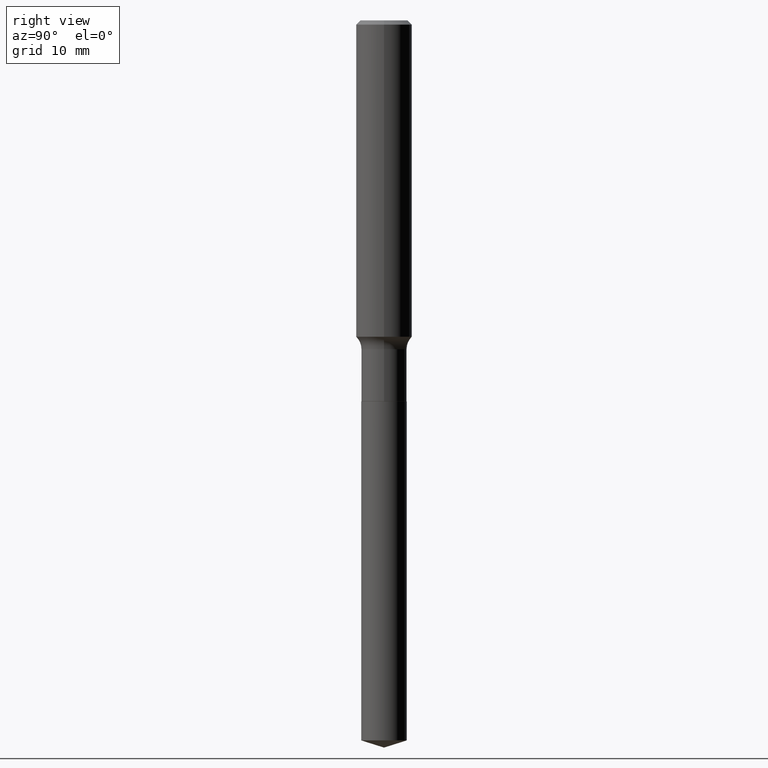
[diagram: clean part render]
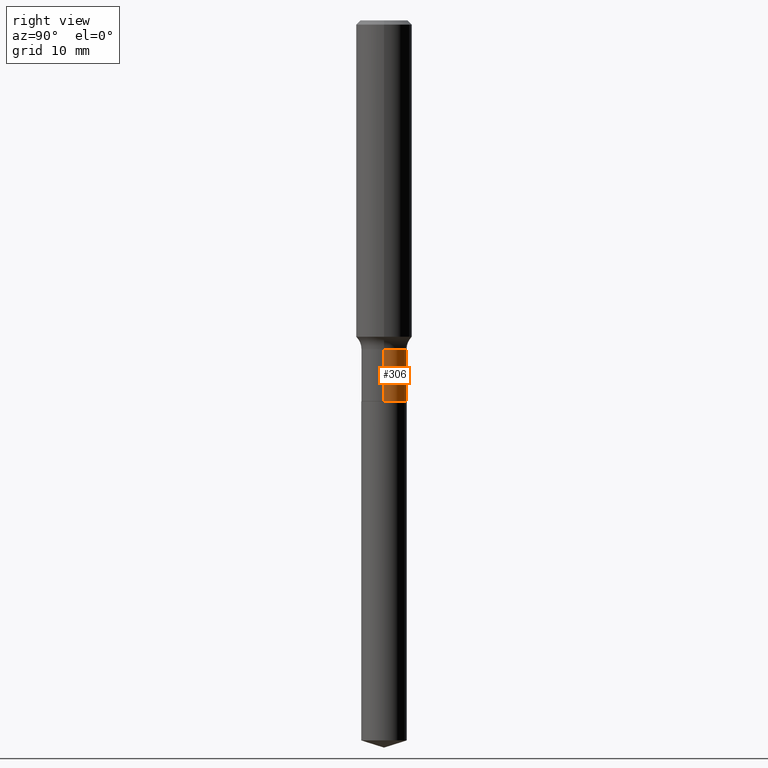
[diagram: same view with one face highlighted and labeled with its STEP entity id]
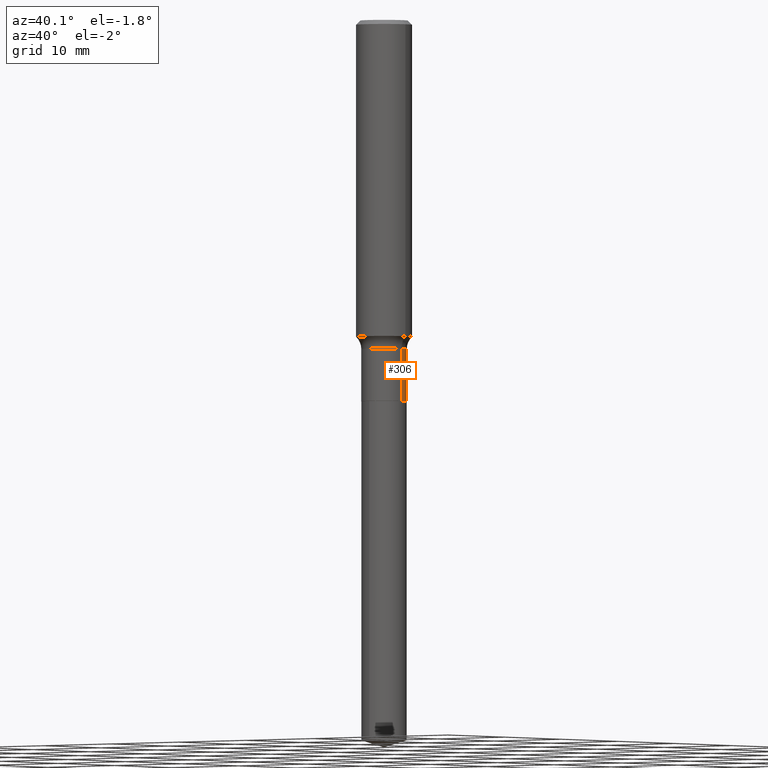
[diagram: same view with one face highlighted and labeled with its STEP entity id]
A machine part, right view. The second image highlights one B-rep face of the part: STEP entity #306.
A second angle (auxiliary view) of the same face is appended — the face is thin or edge-on in the first view.
In plain terms, the highlighted cylindrical surface (edge-blend (fillet) strip) has radius 2.5794 mm, axis along (-0, 0, 1).
Its self-contained STEP definition (entity closure, byte-faithful):
#10 = ORIENTED_EDGE ( 'NONE', *, *, #172, .T. ) ;
#27 = LINE ( 'NONE', #58, #154 ) ;
#50 = CARTESIAN_POINT ( 'NONE',  ( 4.163655189410814110E-29, -5.944596127514340611E-15, -1.702600000000000335 ) ) ;
#52 = CARTESIAN_POINT ( 'NONE',  ( 0.1015500000000000014, -6.653715987433380604E-15, -1.702600000000000335 ) ) ;
#55 = DIRECTION ( 'NONE',  ( -2.445468806185136877E-29, 3.491481338843145188E-15, 1.000000000000000000 ) ) ;
#58 = CARTESIAN_POINT ( 'NONE',  ( 0.1015499999999999875, -7.091198599190402890E-16, 4.951757515820772372E-30 ) ) ;
#61 = CIRCLE ( 'NONE', #176, 0.1015500000000000014 ) ;
#79 = AXIS2_PLACEMENT_3D ( 'NONE', #323, #213, #362 ) ;
#90 = CARTESIAN_POINT ( 'NONE',  ( 0.1015499999999999736, -5.839851687349042508E-15, -1.469500000000000028 ) ) ;
#93 = VERTEX_POINT ( 'NONE', #451 ) ;
#133 = VECTOR ( 'NONE', #457, 39.37007874015748143 ) ;
#154 = VECTOR ( 'NONE', #55, 39.37007874015748143 ) ;
#156 = CARTESIAN_POINT ( 'NONE',  ( -0.1015499999999999736, -4.816107829307788434E-15, -1.469500000000000028 ) ) ;
#172 = EDGE_CURVE ( 'NONE', #93, #252, #343, .T. ) ;
#176 = AXIS2_PLACEMENT_3D ( 'NONE', #50, #429, #384 ) ;
#179 = DIRECTION ( 'NONE',  ( 1.000000000000000000, -6.982962677686266711E-15, 0.000000000000000000 ) ) ;
#197 = ORIENTED_EDGE ( 'NONE', *, *, #426, .F. ) ;
#198 = EDGE_CURVE ( 'NONE', #244, #93, #61, .T. ) ;
#213 = DIRECTION ( 'NONE',  ( -2.445468806185136597E-29, 3.491481338843145583E-15, 1.000000000000000000 ) ) ;
#227 = CARTESIAN_POINT ( 'NONE',  ( 3.593616410689058018E-29, -5.130731827430002515E-15, -1.469500000000000028 ) ) ;
#244 = VERTEX_POINT ( 'NONE', #52 ) ;
#251 = FACE_OUTER_BOUND ( 'NONE', #353, .T. ) ;
#252 = VERTEX_POINT ( 'NONE', #156 ) ;
#261 = DIRECTION ( 'NONE',  ( -2.445468806185136597E-29, 3.491481338843145583E-15, 1.000000000000000000 ) ) ;
#275 = CARTESIAN_POINT ( 'NONE',  ( -0.1015499999999999875, 7.215561481643816499E-16, -4.995178584153856401E-30 ) ) ;
#306 = ADVANCED_FACE ( 'NONE', ( #251 ), #468, .T. ) ;
#323 = CARTESIAN_POINT ( 'NONE',  ( 0.000000000000000000, 0.000000000000000000, 0.000000000000000000 ) ) ;
#340 = CIRCLE ( 'NONE', #440, 0.1015499999999999736 ) ;
#343 = LINE ( 'NONE', #275, #133 ) ;
#353 = EDGE_LOOP ( 'NONE', ( #400, #10, #197, #357 ) ) ;
#357 = ORIENTED_EDGE ( 'NONE', *, *, #385, .F. ) ;
#362 = DIRECTION ( 'NONE',  ( 1.000000000000000000, -6.982962677686266711E-15, 4.876176775795935793E-29 ) ) ;
#368 = VERTEX_POINT ( 'NONE', #90 ) ;
#384 = DIRECTION ( 'NONE',  ( 1.000000000000000000, -6.982962677686264344E-15, 0.000000000000000000 ) ) ;
#385 = EDGE_CURVE ( 'NONE', #244, #368, #27, .T. ) ;
#400 = ORIENTED_EDGE ( 'NONE', *, *, #198, .T. ) ;
#426 = EDGE_CURVE ( 'NONE', #368, #252, #340, .T. ) ;
#429 = DIRECTION ( 'NONE',  ( -2.445468806185136597E-29, 3.491481338843145583E-15, 1.000000000000000000 ) ) ;
#440 = AXIS2_PLACEMENT_3D ( 'NONE', #227, #261, #179 ) ;
#451 = CARTESIAN_POINT ( 'NONE',  ( -0.1015500000000000014, -4.816107829307788434E-15, -1.702600000000000335 ) ) ;
#457 = DIRECTION ( 'NONE',  ( -2.445468806185136877E-29, 3.491481338843145188E-15, 1.000000000000000000 ) ) ;
#468 = CYLINDRICAL_SURFACE ( 'NONE', #79, 0.1015499999999999875 ) ;